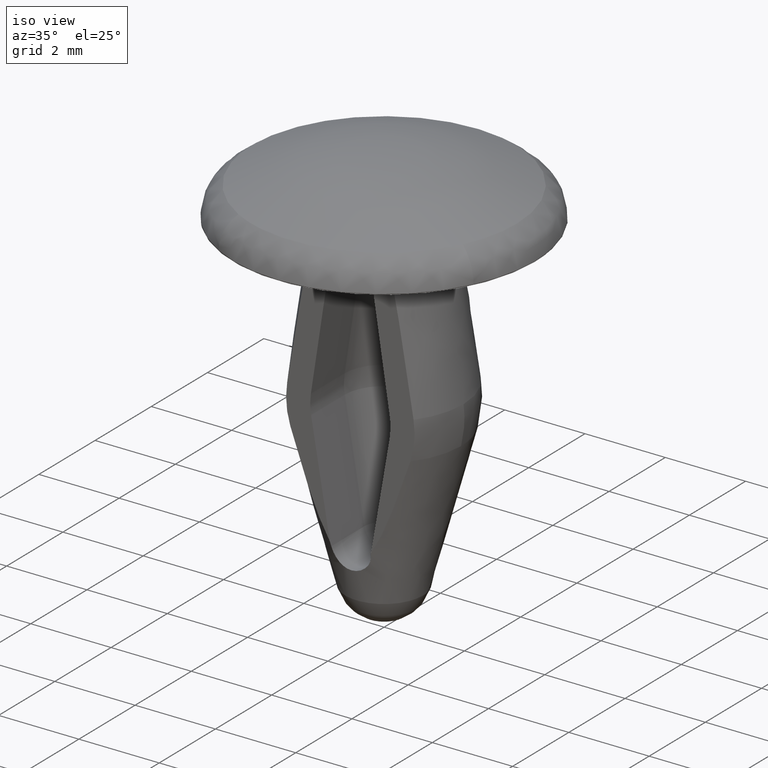
[diagram: clean part render]
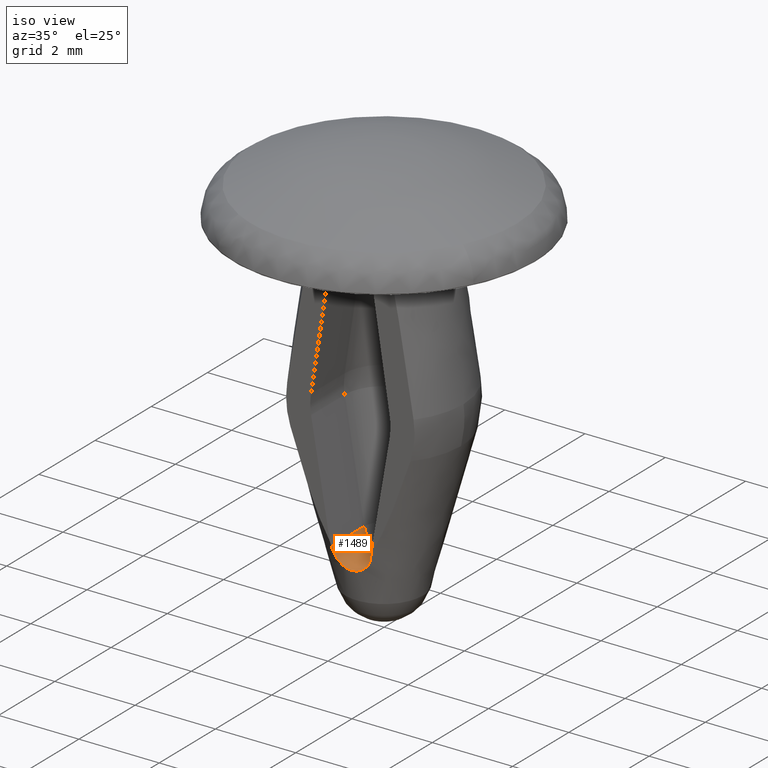
[diagram: same view with one face highlighted and labeled with its STEP entity id]
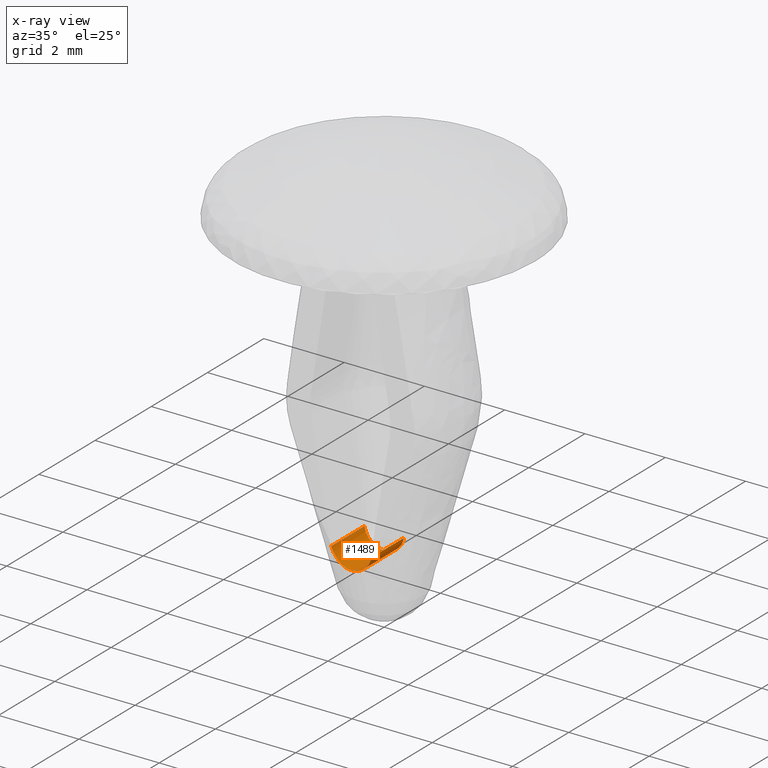
[diagram: x-ray of the same camera — body ghosted, the highlighted face saturated]
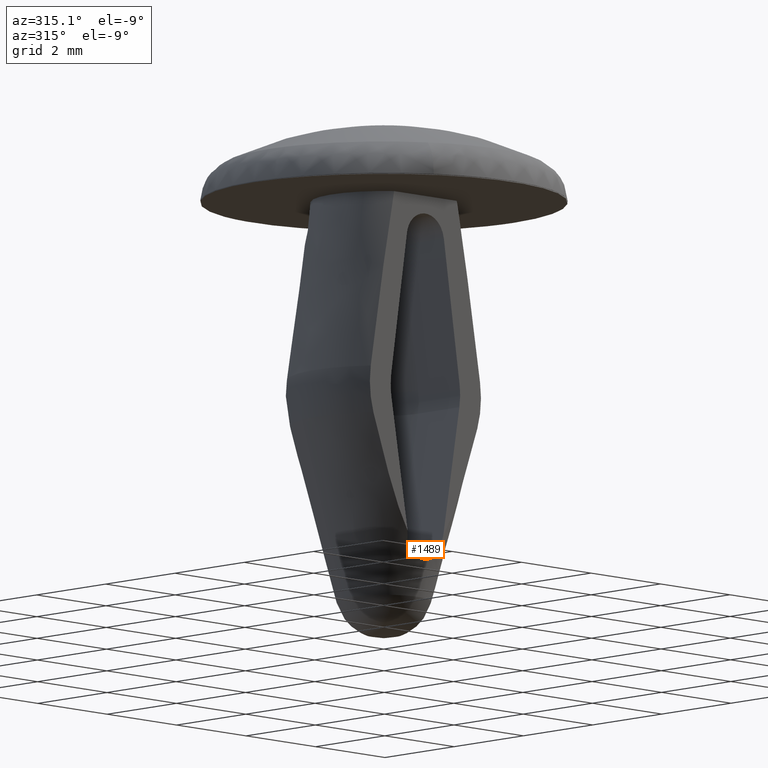
[diagram: same view with one face highlighted and labeled with its STEP entity id]
A machine part, iso view. The second image highlights one B-rep face of the part: STEP entity #1489.
The next image is the same camera in x-ray: the body ghosted, the highlighted face saturated — about 1% of this face is hidden behind the body in this view.
A second angle (auxiliary view) of the same face is appended — the face is thin or edge-on in the first view.
In plain terms, the highlighted face is a freeform B-spline surface patch.
Its self-contained STEP definition (entity closure, byte-faithful):
#415=CARTESIAN_POINT('',(0.492802392197806,-1.175320674523856,-7.084532847131261));
#416=VERTEX_POINT('',#415);
#424=CARTESIAN_POINT('',(-0.492805000000000,-1.175319537540008,-7.084533000000000));
#425=VERTEX_POINT('',#424);
#426=CARTESIAN_POINT('',(0.492802392197806,-1.175320674523856,-7.084532847131261));
#427=CARTESIAN_POINT('',(0.487914217918405,-1.169251953640152,-7.113029435041780));
#428=CARTESIAN_POINT('',(0.480609830019476,-1.164382714923051,-7.140884199104532));
#429=CARTESIAN_POINT('',(0.461190862643049,-1.156836850075034,-7.195287250771619));
#430=CARTESIAN_POINT('',(0.448942485677384,-1.154148871721679,-7.222061662798796));
#431=CARTESIAN_POINT('',(0.419889532447054,-1.150785545151747,-7.273044803293007));
#432=CARTESIAN_POINT('',(0.403286155056236,-1.150102973981386,-7.297004417941547));
#433=CARTESIAN_POINT('',(0.365998331063620,-1.150135553785189,-7.341901332657541));
#434=CARTESIAN_POINT('',(0.345082728490972,-1.150867014579845,-7.363006132902763));
#435=CARTESIAN_POINT('',(0.300395699089639,-1.153082502925338,-7.400771680155127));
#436=CARTESIAN_POINT('',(0.276601394303101,-1.154554580905109,-7.417545808137469));
#437=CARTESIAN_POINT('',(0.226102969983249,-1.157638115765746,-7.446911948125763));
#438=CARTESIAN_POINT('',(0.199223818825233,-1.159256578070406,-7.459520986866301));
#439=CARTESIAN_POINT('',(0.144468834231024,-1.162041227317278,-7.479560715139928));
#440=CARTESIAN_POINT('',(0.116382700811088,-1.163223295349336,-7.487145869476676));
#441=CARTESIAN_POINT('',(0.058765836837351,-1.164857389451741,-7.497395936309064));
#442=CARTESIAN_POINT('',(0.029169633599838,-1.165299137604348,-7.499999209920109));
#443=CARTESIAN_POINT('',(-0.029141890314244,-1.165299364046444,-7.500000991166479));
#444=CARTESIAN_POINT('',(-0.058151246051658,-1.164869725498987,-7.497471291225062));
#445=CARTESIAN_POINT('',(-0.115873463744196,-1.163242477434767,-7.487270772411615));
#446=CARTESIAN_POINT('',(-0.144474691830313,-1.162040530293460,-7.479557386542203));
#447=CARTESIAN_POINT('',(-0.199156704356411,-1.159259854527369,-7.459548775428335));
#448=CARTESIAN_POINT('',(-0.225527191406230,-1.157672722167791,-7.447213453644058));
#449=CARTESIAN_POINT('',(-0.276300434078770,-1.154572655887380,-7.417756775784318));
#450=CARTESIAN_POINT('',(-0.300393770728792,-1.153083091794362,-7.400763600048089));
#451=CARTESIAN_POINT('',(-0.344849278817070,-1.150876856492725,-7.363217726445840));
#452=CARTESIAN_POINT('',(-0.365413133356729,-1.150145066363417,-7.342552856415042));
#453=CARTESIAN_POINT('',(-0.403102649147116,-1.150092548769704,-7.297283889855607));
#454=CARTESIAN_POINT('',(-0.419828184496801,-1.150788138957933,-7.273111177724878));
#455=CARTESIAN_POINT('',(-0.448622936874544,-1.154099705755678,-7.222672564449372));
#456=CARTESIAN_POINT('',(-0.460798476427795,-1.156713442819398,-7.196280105155565));
#457=CARTESIAN_POINT('',(-0.480572119171682,-1.164335461805389,-7.141108744884165));
#458=CARTESIAN_POINT('',(-0.487915439921192,-1.169249102632604,-7.113037682227805));
#459=CARTESIAN_POINT('',(-0.492805000000000,-1.175319537540008,-7.084533000000000));
#460=B_SPLINE_CURVE_WITH_KNOTS('',3,(#426,#427,#428,#429,#430,#431,#432,#433,#434,#435,#436,#437,#438,#439,#440,#441,#442,#443,#444,#445,#446,#447,#448,#449,#450,#451,#452,#453,#454,#455,#456,#457,#458,#459),.UNSPECIFIED.,.F.,.U.,(4,2,2,2,2,2,2,2,2,2,2,2,2,2,2,2,4),(0.0,0.062500000000000,0.125000000000000,0.187500000000000,0.250000000000000,0.312500000000000,0.375000000000000,0.437500000000000,0.500000000000000,0.562500000000000,0.625000000000000,0.687500000000000,0.750000000000000,0.812500000000000,0.875000000000000,0.937500000000000,0.999999812182480),.UNSPECIFIED.);
#461=EDGE_CURVE('',#416,#425,#460,.T.);
#1121=CARTESIAN_POINT('',(-0.492805000000000,0.0,-7.084533000000000));
#1122=VERTEX_POINT('',#1121);
#1123=CARTESIAN_POINT('',(0.492803682987725,-2.168404E-016,-7.084533000000000));
#1124=VERTEX_POINT('',#1123);
#1142=CARTESIAN_POINT('',(-0.492805000000000,0.0,-7.084533000000000));
#1143=CARTESIAN_POINT('',(-0.421537789145568,-1.567928E-017,-7.500000329183662));
#1144=CARTESIAN_POINT('',(-0.000000751014202,-1.084202E-016,-7.500000329183662));
#1145=CARTESIAN_POINT('',(0.421536287117163,-2.011612E-016,-7.500000329183662));
#1146=CARTESIAN_POINT('',(0.492803682987725,-2.168404E-016,-7.084533000000000));
#1154=(BOUNDED_CURVE()B_SPLINE_CURVE(2,(#1142,#1143,#1144,#1145,#1146),.UNSPECIFIED.,.F.,.U.)B_SPLINE_CURVE_WITH_KNOTS((3,2,3),(0.0,0.500000000000000,1.0),.UNSPECIFIED.)CURVE()GEOMETRIC_REPRESENTATION_ITEM()RATIONAL_B_SPLINE_CURVE((1.0,0.764547363357122,1.0,0.764547363357122,1.0))REPRESENTATION_ITEM(''));
#1155=EDGE_CURVE('',#1122,#1124,#1154,.T.);
#1449=CARTESIAN_POINT('',(0.492803682987725,-2.168404E-016,-7.084533000000000));
#1450=CARTESIAN_POINT('',(0.492802392197806,-1.175320674523856,-7.084532847131261));
#1451=QUASI_UNIFORM_CURVE('',1,(#1449,#1450),.UNSPECIFIED.,.F.,.U.);
#1452=EDGE_CURVE('',#1124,#416,#1451,.T.);
#1461=CARTESIAN_POINT('',(0.495413472969946,0.029383016863096,-7.067568415697394));
#1462=CARTESIAN_POINT('',(0.495413472969946,-1.205438266808530,-7.067568415697394));
#1463=CARTESIAN_POINT('',(0.435106356228561,0.029383016863096,-7.509741846009247));
#1464=CARTESIAN_POINT('',(0.435106356228561,-1.205438266808530,-7.509741846009247));
#1465=CARTESIAN_POINT('',(-0.011051678885469,0.029383016863096,-7.499877845472083));
#1466=CARTESIAN_POINT('',(-0.011051678885469,-1.205438266808530,-7.499877845472083));
#1467=CARTESIAN_POINT('',(-0.457209713999498,0.029383016863096,-7.490013844934921));
#1468=CARTESIAN_POINT('',(-0.457209713999498,-1.205438266808530,-7.490013844934921));
#1469=CARTESIAN_POINT('',(-0.497915644104677,0.029383016863096,-7.045607141500240));
#1470=CARTESIAN_POINT('',(-0.497915644104677,-1.205438266808530,-7.045607141500240));
#1478=(BOUNDED_SURFACE()B_SPLINE_SURFACE(1,2,((#1461,#1463,#1465,#1467,#1469),(#1462,#1464,#1466,#1468,#1470)),.UNSPECIFIED.,.F.,.F.,.U.)B_SPLINE_SURFACE_WITH_KNOTS((2,2),(3,2,3),(0.0,1.0),(0.0,1.0,2.0),.UNSPECIFIED.)GEOMETRIC_REPRESENTATION_ITEM()RATIONAL_B_SPLINE_SURFACE(((1.0,0.746057375061700,1.0,0.746057375061700,1.0),(1.0,0.746057375061700,1.0,0.746057375061700,1.0)))REPRESENTATION_ITEM('')SURFACE());
#1479=CARTESIAN_POINT('',(-0.492805000000000,0.0,-7.084533000000000));
#1480=CARTESIAN_POINT('',(-0.492805000000000,-1.175319537540008,-7.084533000000000));
#1481=QUASI_UNIFORM_CURVE('',1,(#1479,#1480),.UNSPECIFIED.,.F.,.U.);
#1482=EDGE_CURVE('',#1122,#425,#1481,.T.);
#1483=ORIENTED_EDGE('',*,*,#1482,.T.);
#1484=ORIENTED_EDGE('',*,*,#461,.F.);
#1485=ORIENTED_EDGE('',*,*,#1452,.F.);
#1486=ORIENTED_EDGE('',*,*,#1155,.F.);
#1487=EDGE_LOOP('',(#1483,#1484,#1485,#1486));
#1488=FACE_OUTER_BOUND('',#1487,.T.);
#1489=ADVANCED_FACE('',(#1488),#1478,.F.);